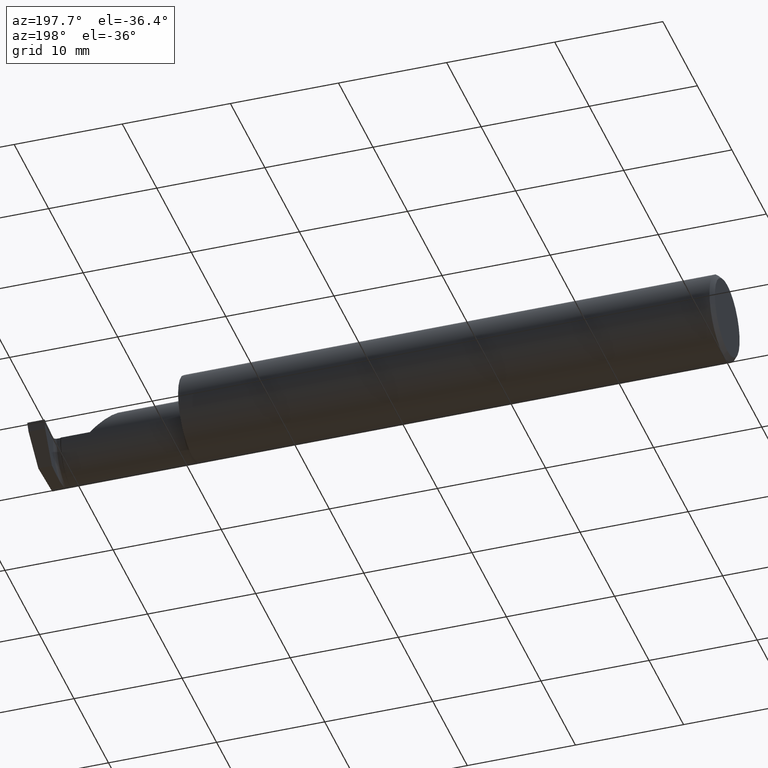
[diagram: clean part render]
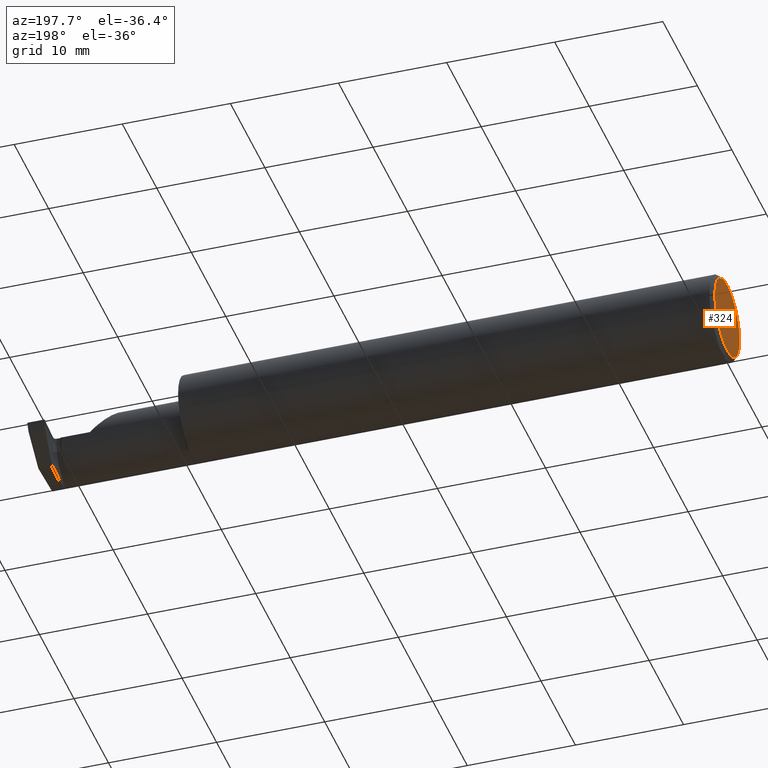
[diagram: same view with one face highlighted and labeled with its STEP entity id]
A machine part, auxiliary view. The second image highlights one B-rep face of the part: STEP entity #324.
In plain terms, the highlighted planar face has unit normal (1, 0, 0).
Its self-contained STEP definition (entity closure, byte-faithful):
#46 = CIRCLE ( 'NONE', #665, 0.1410999999999999754 ) ;
#79 = ORIENTED_EDGE ( 'NONE', *, *, #104, .T. ) ;
#99 = EDGE_CURVE ( 'NONE', #779, #857, #255, .T. ) ;
#104 = EDGE_CURVE ( 'NONE', #857, #779, #46, .T. ) ;
#133 = CARTESIAN_POINT ( 'NONE',  ( 0.000000000000000000, 1.819825143532966472E-17, 0.1410999999999999754 ) ) ;
#189 = DIRECTION ( 'NONE',  ( -1.000000000000000000, -0.000000000000000000, -0.000000000000000000 ) ) ;
#228 = CARTESIAN_POINT ( 'NONE',  ( 0.000000000000000000, 0.000000000000000000, -0.1410999999999999754 ) ) ;
#255 = CIRCLE ( 'NONE', #359, 0.1410999999999999754 ) ;
#274 = DIRECTION ( 'NONE',  ( 0.000000000000000000, 0.000000000000000000, 1.000000000000000000 ) ) ;
#301 = EDGE_LOOP ( 'NONE', ( #79, #569 ) ) ;
#324 = ADVANCED_FACE ( 'NONE', ( #850 ), #765, .F. ) ;
#359 = AXIS2_PLACEMENT_3D ( 'NONE', #695, #1038, #274 ) ;
#494 = DIRECTION ( 'NONE',  ( 0.000000000000000000, 0.000000000000000000, -1.000000000000000000 ) ) ;
#500 = AXIS2_PLACEMENT_3D ( 'NONE', #840, #589, #494 ) ;
#522 = CARTESIAN_POINT ( 'NONE',  ( 0.000000000000000000, 0.000000000000000000, 0.000000000000000000 ) ) ;
#569 = ORIENTED_EDGE ( 'NONE', *, *, #99, .T. ) ;
#589 = DIRECTION ( 'NONE',  ( 1.000000000000000000, 0.000000000000000000, 0.000000000000000000 ) ) ;
#665 = AXIS2_PLACEMENT_3D ( 'NONE', #522, #189, #869 ) ;
#695 = CARTESIAN_POINT ( 'NONE',  ( 0.000000000000000000, 0.000000000000000000, 0.000000000000000000 ) ) ;
#765 = PLANE ( 'NONE',  #500 ) ;
#779 = VERTEX_POINT ( 'NONE', #133 ) ;
#840 = CARTESIAN_POINT ( 'NONE',  ( 0.000000000000000000, 0.000000000000000000, 0.000000000000000000 ) ) ;
#850 = FACE_OUTER_BOUND ( 'NONE', #301, .T. ) ;
#857 = VERTEX_POINT ( 'NONE', #228 ) ;
#869 = DIRECTION ( 'NONE',  ( 0.000000000000000000, 0.000000000000000000, 1.000000000000000000 ) ) ;
#1038 = DIRECTION ( 'NONE',  ( -1.000000000000000000, -0.000000000000000000, -0.000000000000000000 ) ) ;